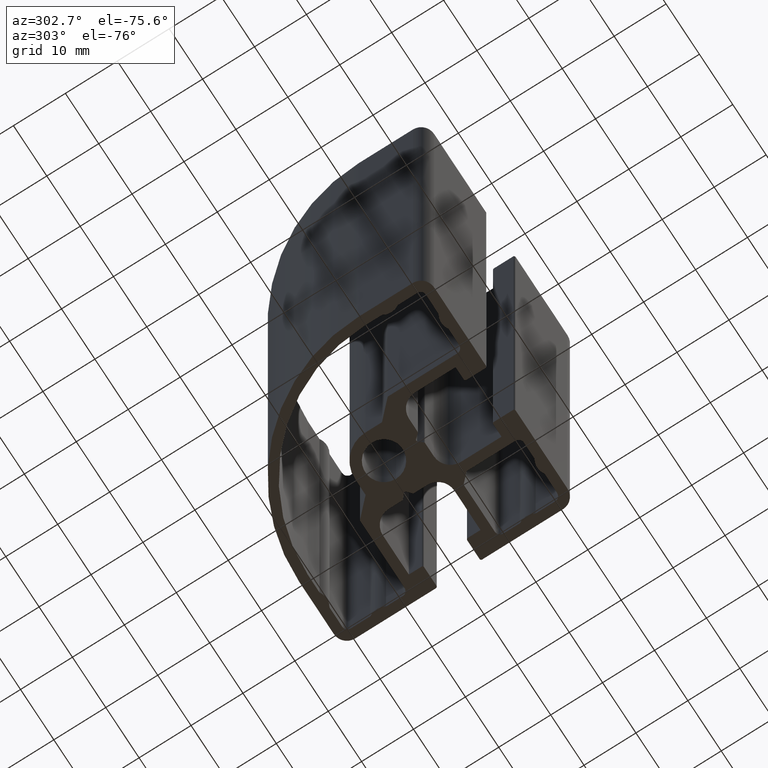
[diagram: clean part render]
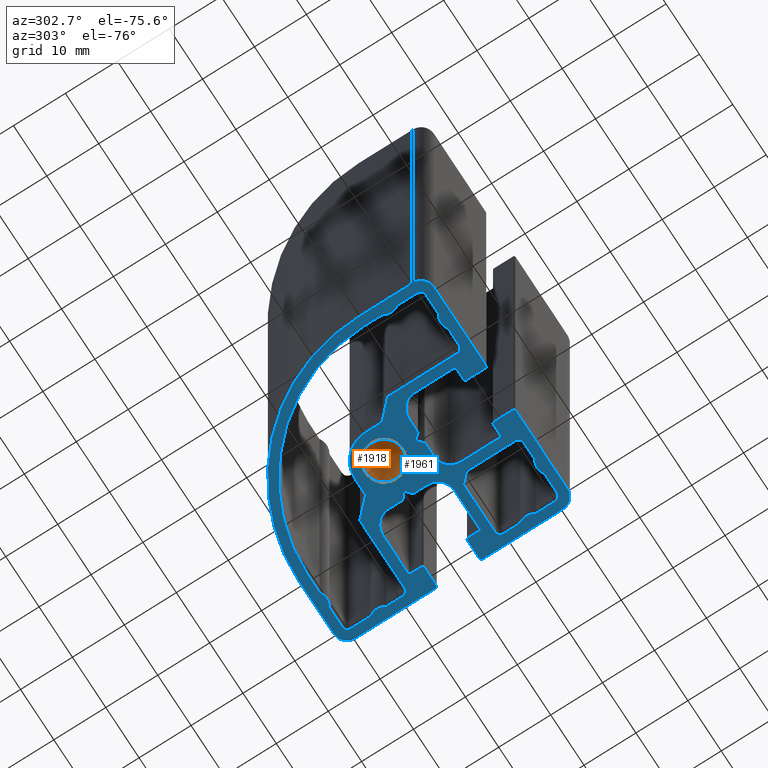
[diagram: same view with the hole feature highlighted: cylindrical wall and planar end face, labeled with their STEP entity ids]
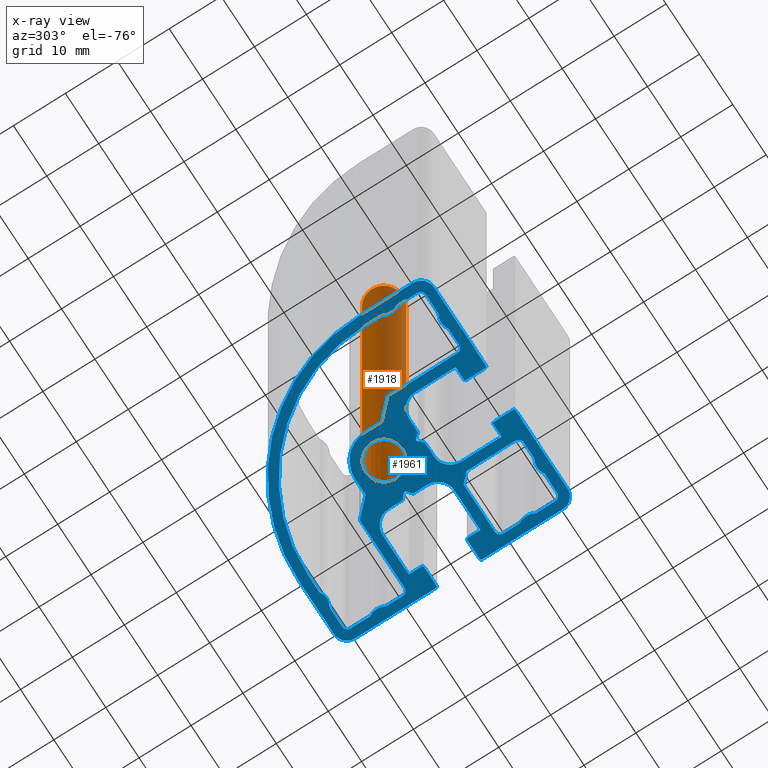
[diagram: x-ray of the same camera — body ghosted, the hole faces saturated]
A machine part, auxiliary view. The highlighted faces form one hole feature of diameter 7.2 mm: the cylindrical wall (entity #1918, orange) and its adjacent planar end face (entity #1961, blue) — they share a circular edge in the B-rep.
The next image is the same camera in x-ray (body ghosted, the hole faces saturated) — the bore reads through the body.
Wall:
#15=FACE_BOUND('',#219,.T.);
#119=FACE_OUTER_BOUND('',#218,.T.);
#218=EDGE_LOOP('',(#1432));
#219=EDGE_LOOP('',(#1433));
#710=CIRCLE('',#2074,3.6);
#711=CIRCLE('',#2075,3.6);
#852=VERTEX_POINT('',#3050);
#853=VERTEX_POINT('',#3052);
#1094=EDGE_CURVE('',#852,#852,#710,.T.);
#1095=EDGE_CURVE('',#853,#853,#711,.T.);
#1432=ORIENTED_EDGE('',*,*,#1094,.F.);
#1433=ORIENTED_EDGE('',*,*,#1095,.F.);
#1847=CYLINDRICAL_SURFACE('',#2073,3.6);
#1918=ADVANCED_FACE('',(#119,#15),#1847,.F.);
#2073=AXIS2_PLACEMENT_3D('',#3049,#2466,#2467);
#2074=AXIS2_PLACEMENT_3D('',#3051,#2468,#2469);
#2075=AXIS2_PLACEMENT_3D('',#3053,#2470,#2471);
#2466=DIRECTION('center_axis',(0.,0.,1.));
#2467=DIRECTION('ref_axis',(-1.,0.,0.));
#2468=DIRECTION('center_axis',(0.,0.,-1.));
#2469=DIRECTION('ref_axis',(-1.,0.,0.));
#2470=DIRECTION('center_axis',(0.,0.,1.));
#2471=DIRECTION('ref_axis',(-1.,0.,0.));
#3049=CARTESIAN_POINT('Origin',(0.,0.,0.));
#3050=CARTESIAN_POINT('',(3.6,-4.40872847693047E-16,100.));
#3051=CARTESIAN_POINT('Origin',(0.,0.,100.));
#3052=CARTESIAN_POINT('',(3.6,4.40872847693047E-16,0.));
#3053=CARTESIAN_POINT('Origin',(0.,0.,0.));
End face:
#16=FACE_BOUND('',#263,.T.);
#17=FACE_BOUND('',#264,.T.);
#18=FACE_BOUND('',#265,.T.);
#66=PLANE('',#2156);
#162=FACE_OUTER_BOUND('',#262,.T.);
#262=EDGE_LOOP('',(#1602,#1603,#1604,#1605,#1606,#1607,#1608,#1609,#1610,
#1611,#1612,#1613,#1614,#1615,#1616,#1617,#1618,#1619,#1620,#1621,#1622,
#1623,#1624,#1625,#1626,#1627,#1628,#1629,#1630,#1631,#1632,#1633,#1634,
#1635,#1636,#1637,#1638,#1639,#1640,#1641,#1642,#1643,#1644,#1645,#1646,
#1647,#1648,#1649));
#263=EDGE_LOOP('',(#1650));
#264=EDGE_LOOP('',(#1651,#1652,#1653,#1654,#1655,#1656,#1657,#1658,#1659,
#1660,#1661,#1662,#1663,#1664,#1665,#1666,#1667,#1668,#1669,#1670,#1671,
#1672,#1673,#1674,#1675,#1676,#1677,#1678,#1679,#1680,#1681,#1682));
#265=EDGE_LOOP('',(#1683,#1684,#1685,#1686,#1687,#1688,#1689,#1690,#1691,
#1692,#1693,#1694,#1695,#1696,#1697,#1698));
#279=LINE('',#2774,#469);
#283=LINE('',#2786,#473);
#289=LINE('',#2810,#479);
#293=LINE('',#2822,#483);
#296=LINE('',#2828,#486);
#299=LINE('',#2834,#489);
#303=LINE('',#2846,#493);
#310=LINE('',#2871,#500);
#316=LINE('',#2895,#506);
#320=LINE('',#2907,#510);
#326=LINE('',#2931,#516);
#330=LINE('',#2943,#520);
#333=LINE('',#2949,#523);
#336=LINE('',#2955,#526);
#340=LINE('',#2967,#530);
#343=LINE('',#2973,#533);
#346=LINE('',#2979,#536);
#350=LINE('',#2991,#540);
#356=LINE('',#3015,#546);
#360=LINE('',#3027,#550);
#365=LINE('',#3048,#555);
#370=LINE('',#3068,#560);
#374=LINE('',#3080,#564);
#378=LINE('',#3092,#568);
#381=LINE('',#3098,#571);
#385=LINE('',#3110,#575);
#391=LINE('',#3131,#581);
#395=LINE('',#3143,#585);
#398=LINE('',#3149,#588);
#402=LINE('',#3161,#592);
#405=LINE('',#3170,#595);
#408=LINE('',#3178,#598);
#412=LINE('',#3190,#602);
#416=LINE('',#3202,#606);
#419=LINE('',#3208,#609);
#423=LINE('',#3220,#613);
#429=LINE('',#3241,#619);
#433=LINE('',#3253,#623);
#436=LINE('',#3259,#626);
#440=LINE('',#3271,#630);
#444=LINE('',#3283,#634);
#450=LINE('',#3302,#640);
#451=LINE('',#3305,#641);
#454=LINE('',#3311,#644);
#457=LINE('',#3318,#647);
#458=LINE('',#3321,#648);
#459=LINE('',#3324,#649);
#469=VECTOR('',#2183,3.7282175723307);
#473=VECTOR('',#2195,3.7282175723338);
#479=VECTOR('',#2221,3.12821757233066);
#483=VECTOR('',#2233,9.37365400000133);
#486=VECTOR('',#2238,2.30000057030746);
#489=VECTOR('',#2243,9.37365400000362);
#493=VECTOR('',#2255,3.12821757232699);
#500=VECTOR('',#2282,3.32821757234062);
#506=VECTOR('',#2308,3.72821757233071);
#510=VECTOR('',#2320,3.72821757233365);
#516=VECTOR('',#2346,3.12821757233066);
#520=VECTOR('',#2358,13.3999999999897);
#523=VECTOR('',#2363,4.38406204337119);
#526=VECTOR('',#2368,3.2);
#530=VECTOR('',#2380,3.2);
#533=VECTOR('',#2385,4.38406204337121);
#536=VECTOR('',#2390,13.3999999999912);
#540=VECTOR('',#2402,3.1282175723185);
#546=VECTOR('',#2428,3.72821757233143);
#550=VECTOR('',#2440,3.72821757232995);
#555=VECTOR('',#2465,3.32821757233886);
#560=VECTOR('',#2484,1.04228513006779);
#564=VECTOR('',#2496,2.5633116785888);
#568=VECTOR('',#2508,7.80000000000001);
#571=VECTOR('',#2513,2.45);
#575=VECTOR('',#2525,3.7);
#581=VECTOR('',#2545,3.7);
#585=VECTOR('',#2557,2.45);
#588=VECTOR('',#2562,7.8);
#592=VECTOR('',#2574,2.56331167858849);
#595=VECTOR('',#2585,1.0422851300662);
#598=VECTOR('',#2590,1.0422851300662);
#602=VECTOR('',#2602,2.56331167858849);
#606=VECTOR('',#2614,7.8);
#609=VECTOR('',#2619,2.45);
#613=VECTOR('',#2631,3.7);
#619=VECTOR('',#2651,3.7);
#623=VECTOR('',#2663,2.45);
#626=VECTOR('',#2668,7.80000000000002);
#630=VECTOR('',#2680,2.5633116785888);
#634=VECTOR('',#2692,1.04228513006779);
#640=VECTOR('',#2712,15.55);
#641=VECTOR('',#2715,15.5500000000006);
#644=VECTOR('',#2720,10.5);
#647=VECTOR('',#2727,15.55);
#648=VECTOR('',#2730,10.5);
#649=VECTOR('',#2733,15.5500000000006);
#657=CIRCLE('',#1973,0.250000000000014);
#659=CIRCLE('',#1977,0.999999999996);
#661=CIRCLE('',#1981,0.250000000000007);
#663=CIRCLE('',#1984,2.7199999999891);
#665=CIRCLE('',#1987,0.249999999999989);
#667=CIRCLE('',#1991,0.999999999998);
#669=CIRCLE('',#1997,0.999999999998);
#671=CIRCLE('',#2001,0.25);
#673=CIRCLE('',#2004,2.71999999998912);
#675=CIRCLE('',#2007,30.2);
#677=CIRCLE('',#2011,0.250000000000014);
#679=CIRCLE('',#2014,2.71999999998911);
#681=CIRCLE('',#2017,0.249999999999986);
#683=CIRCLE('',#2021,0.999999999996);
#685=CIRCLE('',#2025,0.249999999999993);
#687=CIRCLE('',#2028,2.71999999998913);
#689=CIRCLE('',#2031,0.249999999999979);
#691=CIRCLE('',#2035,0.999999999998003);
#693=CIRCLE('',#2041,5.6);
#695=CIRCLE('',#2047,0.999999999998003);
#697=CIRCLE('',#2051,0.250000000000018);
#699=CIRCLE('',#2054,2.71999999998912);
#701=CIRCLE('',#2057,0.250000000000018);
#703=CIRCLE('',#2061,0.999999999996);
#705=CIRCLE('',#2065,0.250000000000004);
#707=CIRCLE('',#2068,2.71999999998912);
#709=CIRCLE('',#2071,0.250000000000004);
#711=CIRCLE('',#2075,3.6);
#713=CIRCLE('',#2078,0.300000000000003);
#715=CIRCLE('',#2082,0.300000000000004);
#717=CIRCLE('',#2086,3.19999999999359);
#719=CIRCLE('',#2091,0.2999999999994);
#721=CIRCLE('',#2095,0.2999999999994);
#723=CIRCLE('',#2098,0.299999999999407);
#725=CIRCLE('',#2102,0.2999999999994);
#727=CIRCLE('',#2107,3.1999999999936);
#729=CIRCLE('',#2111,0.299999999999997);
#731=CIRCLE('',#2116,0.299999999999997);
#733=CIRCLE('',#2120,3.1999999999936);
#735=CIRCLE('',#2125,0.2999999999994);
#737=CIRCLE('',#2129,0.299999999999407);
#739=CIRCLE('',#2132,0.2999999999994);
#741=CIRCLE('',#2136,0.2999999999994);
#743=CIRCLE('',#2141,3.19999999999359);
#745=CIRCLE('',#2145,0.300000000000004);
#747=CIRCLE('',#2149,0.300000000000003);
#749=CIRCLE('',#2152,32.);
#750=CIRCLE('',#2157,2.5);
#751=CIRCLE('',#2158,2.5);
#752=CIRCLE('',#2159,2.5);
#758=VERTEX_POINT('',#2765);
#759=VERTEX_POINT('',#2767);
#761=VERTEX_POINT('',#2773);
#763=VERTEX_POINT('',#2779);
#765=VERTEX_POINT('',#2785);
#767=VERTEX_POINT('',#2791);
#769=VERTEX_POINT('',#2797);
#771=VERTEX_POINT('',#2803);
#773=VERTEX_POINT('',#2809);
#775=VERTEX_POINT('',#2815);
#777=VERTEX_POINT('',#2821);
#779=VERTEX_POINT('',#2827);
#781=VERTEX_POINT('',#2833);
#783=VERTEX_POINT('',#2839);
#785=VERTEX_POINT('',#2845);
#787=VERTEX_POINT('',#2851);
#790=VERTEX_POINT('',#2861);
#791=VERTEX_POINT('',#2863);
#793=VERTEX_POINT('',#2869);
#795=VERTEX_POINT('',#2875);
#797=VERTEX_POINT('',#2881);
#799=VERTEX_POINT('',#2887);
#801=VERTEX_POINT('',#2893);
#803=VERTEX_POINT('',#2899);
#805=VERTEX_POINT('',#2905);
#807=VERTEX_POINT('',#2911);
#809=VERTEX_POINT('',#2917);
#811=VERTEX_POINT('',#2923);
#813=VERTEX_POINT('',#2929);
#815=VERTEX_POINT('',#2935);
#817=VERTEX_POINT('',#2941);
#819=VERTEX_POINT('',#2947);
#821=VERTEX_POINT('',#2953);
#823=VERTEX_POINT('',#2959);
#825=VERTEX_POINT('',#2965);
#827=VERTEX_POINT('',#2971);
#829=VERTEX_POINT('',#2977);
#831=VERTEX_POINT('',#2983);
#833=VERTEX_POINT('',#2989);
#835=VERTEX_POINT('',#2995);
#837=VERTEX_POINT('',#3001);
#839=VERTEX_POINT('',#3007);
#841=VERTEX_POINT('',#3013);
#843=VERTEX_POINT('',#3019);
#845=VERTEX_POINT('',#3025);
#847=VERTEX_POINT('',#3031);
#849=VERTEX_POINT('',#3037);
#851=VERTEX_POINT('',#3043);
#853=VERTEX_POINT('',#3052);
#856=VERTEX_POINT('',#3058);
#857=VERTEX_POINT('',#3060);
#859=VERTEX_POINT('',#3066);
#861=VERTEX_POINT('',#3072);
#863=VERTEX_POINT('',#3078);
#865=VERTEX_POINT('',#3084);
#867=VERTEX_POINT('',#3090);
#869=VERTEX_POINT('',#3096);
#871=VERTEX_POINT('',#3102);
#873=VERTEX_POINT('',#3108);
#875=VERTEX_POINT('',#3114);
#878=VERTEX_POINT('',#3121);
#879=VERTEX_POINT('',#3123);
#881=VERTEX_POINT('',#3129);
#883=VERTEX_POINT('',#3135);
#885=VERTEX_POINT('',#3141);
#887=VERTEX_POINT('',#3147);
#889=VERTEX_POINT('',#3153);
#891=VERTEX_POINT('',#3159);
#893=VERTEX_POINT('',#3165);
#896=VERTEX_POINT('',#3175);
#897=VERTEX_POINT('',#3177);
#899=VERTEX_POINT('',#3183);
#901=VERTEX_POINT('',#3189);
#903=VERTEX_POINT('',#3195);
#905=VERTEX_POINT('',#3201);
#907=VERTEX_POINT('',#3207);
#909=VERTEX_POINT('',#3213);
#911=VERTEX_POINT('',#3219);
#913=VERTEX_POINT('',#3225);
#916=VERTEX_POINT('',#3232);
#917=VERTEX_POINT('',#3234);
#919=VERTEX_POINT('',#3240);
#921=VERTEX_POINT('',#3246);
#923=VERTEX_POINT('',#3252);
#925=VERTEX_POINT('',#3258);
#927=VERTEX_POINT('',#3264);
#929=VERTEX_POINT('',#3270);
#931=VERTEX_POINT('',#3276);
#933=VERTEX_POINT('',#3282);
#936=VERTEX_POINT('',#3292);
#937=VERTEX_POINT('',#3294);
#939=VERTEX_POINT('',#3300);
#940=VERTEX_POINT('',#3304);
#942=VERTEX_POINT('',#3310);
#944=VERTEX_POINT('',#3317);
#945=VERTEX_POINT('',#3320);
#946=VERTEX_POINT('',#3322);
#952=EDGE_CURVE('',#759,#758,#657,.T.);
#955=EDGE_CURVE('',#761,#759,#279,.T.);
#958=EDGE_CURVE('',#763,#761,#659,.T.);
#961=EDGE_CURVE('',#765,#763,#283,.T.);
#964=EDGE_CURVE('',#767,#765,#661,.T.);
#967=EDGE_CURVE('',#769,#767,#663,.T.);
#970=EDGE_CURVE('',#771,#769,#665,.T.);
#973=EDGE_CURVE('',#773,#771,#289,.T.);
#976=EDGE_CURVE('',#775,#773,#667,.T.);
#979=EDGE_CURVE('',#777,#775,#293,.T.);
#982=EDGE_CURVE('',#779,#777,#296,.T.);
#985=EDGE_CURVE('',#781,#779,#299,.T.);
#988=EDGE_CURVE('',#783,#781,#669,.T.);
#991=EDGE_CURVE('',#785,#783,#303,.T.);
#994=EDGE_CURVE('',#787,#785,#671,.T.);
#997=EDGE_CURVE('',#758,#787,#673,.T.);
#1000=EDGE_CURVE('',#791,#790,#675,.T.);
#1004=EDGE_CURVE('',#790,#793,#310,.T.);
#1007=EDGE_CURVE('',#793,#795,#677,.T.);
#1010=EDGE_CURVE('',#795,#797,#679,.T.);
#1013=EDGE_CURVE('',#797,#799,#681,.T.);
#1016=EDGE_CURVE('',#799,#801,#316,.T.);
#1019=EDGE_CURVE('',#801,#803,#683,.T.);
#1022=EDGE_CURVE('',#803,#805,#320,.T.);
#1025=EDGE_CURVE('',#805,#807,#685,.T.);
#1028=EDGE_CURVE('',#807,#809,#687,.T.);
#1031=EDGE_CURVE('',#809,#811,#689,.T.);
#1034=EDGE_CURVE('',#811,#813,#326,.T.);
#1037=EDGE_CURVE('',#813,#815,#691,.T.);
#1040=EDGE_CURVE('',#815,#817,#330,.T.);
#1043=EDGE_CURVE('',#817,#819,#333,.T.);
#1046=EDGE_CURVE('',#819,#821,#336,.T.);
#1049=EDGE_CURVE('',#821,#823,#693,.T.);
#1052=EDGE_CURVE('',#823,#825,#340,.T.);
#1055=EDGE_CURVE('',#825,#827,#343,.T.);
#1058=EDGE_CURVE('',#827,#829,#346,.T.);
#1061=EDGE_CURVE('',#829,#831,#695,.T.);
#1064=EDGE_CURVE('',#831,#833,#350,.T.);
#1067=EDGE_CURVE('',#833,#835,#697,.T.);
#1070=EDGE_CURVE('',#835,#837,#699,.T.);
#1073=EDGE_CURVE('',#837,#839,#701,.T.);
#1076=EDGE_CURVE('',#839,#841,#356,.T.);
#1079=EDGE_CURVE('',#841,#843,#703,.T.);
#1082=EDGE_CURVE('',#843,#845,#360,.T.);
#1085=EDGE_CURVE('',#845,#847,#705,.T.);
#1088=EDGE_CURVE('',#847,#849,#707,.T.);
#1091=EDGE_CURVE('',#849,#851,#709,.T.);
#1093=EDGE_CURVE('',#851,#791,#365,.T.);
#1095=EDGE_CURVE('',#853,#853,#711,.T.);
#1098=EDGE_CURVE('',#857,#856,#713,.T.);
#1102=EDGE_CURVE('',#856,#859,#370,.T.);
#1105=EDGE_CURVE('',#859,#861,#715,.T.);
#1108=EDGE_CURVE('',#861,#863,#374,.T.);
#1111=EDGE_CURVE('',#863,#865,#717,.T.);
#1114=EDGE_CURVE('',#865,#867,#378,.T.);
#1117=EDGE_CURVE('',#867,#869,#381,.T.);
#1120=EDGE_CURVE('',#869,#871,#719,.T.);
#1123=EDGE_CURVE('',#871,#873,#385,.T.);
#1126=EDGE_CURVE('',#873,#875,#721,.T.);
#1129=EDGE_CURVE('',#879,#878,#723,.T.);
#1133=EDGE_CURVE('',#878,#881,#391,.T.);
#1136=EDGE_CURVE('',#881,#883,#725,.T.);
#1139=EDGE_CURVE('',#883,#885,#395,.T.);
#1142=EDGE_CURVE('',#885,#887,#398,.T.);
#1145=EDGE_CURVE('',#887,#889,#727,.T.);
#1148=EDGE_CURVE('',#889,#891,#402,.T.);
#1151=EDGE_CURVE('',#891,#893,#729,.T.);
#1153=EDGE_CURVE('',#893,#857,#405,.T.);
#1156=EDGE_CURVE('',#897,#896,#408,.T.);
#1159=EDGE_CURVE('',#899,#897,#731,.T.);
#1162=EDGE_CURVE('',#901,#899,#412,.T.);
#1165=EDGE_CURVE('',#903,#901,#733,.T.);
#1168=EDGE_CURVE('',#905,#903,#416,.T.);
#1171=EDGE_CURVE('',#907,#905,#419,.T.);
#1174=EDGE_CURVE('',#909,#907,#735,.T.);
#1177=EDGE_CURVE('',#911,#909,#423,.T.);
#1180=EDGE_CURVE('',#913,#911,#737,.T.);
#1184=EDGE_CURVE('',#917,#916,#739,.T.);
#1187=EDGE_CURVE('',#919,#917,#429,.T.);
#1190=EDGE_CURVE('',#921,#919,#741,.T.);
#1193=EDGE_CURVE('',#923,#921,#433,.T.);
#1196=EDGE_CURVE('',#925,#923,#436,.T.);
#1199=EDGE_CURVE('',#927,#925,#743,.T.);
#1202=EDGE_CURVE('',#929,#927,#440,.T.);
#1205=EDGE_CURVE('',#931,#929,#745,.T.);
#1208=EDGE_CURVE('',#933,#931,#444,.T.);
#1211=EDGE_CURVE('',#896,#933,#747,.T.);
#1214=EDGE_CURVE('',#937,#936,#749,.T.);
#1218=EDGE_CURVE('',#875,#939,#450,.T.);
#1219=EDGE_CURVE('',#940,#913,#451,.T.);
#1222=EDGE_CURVE('',#942,#937,#454,.T.);
#1225=EDGE_CURVE('',#939,#940,#750,.T.);
#1226=EDGE_CURVE('',#916,#944,#457,.T.);
#1227=EDGE_CURVE('',#944,#942,#751,.T.);
#1228=EDGE_CURVE('',#936,#945,#458,.T.);
#1229=EDGE_CURVE('',#945,#946,#752,.T.);
#1230=EDGE_CURVE('',#946,#879,#459,.T.);
#1602=ORIENTED_EDGE('',*,*,#1129,.T.);
#1603=ORIENTED_EDGE('',*,*,#1133,.T.);
#1604=ORIENTED_EDGE('',*,*,#1136,.T.);
#1605=ORIENTED_EDGE('',*,*,#1139,.T.);
#1606=ORIENTED_EDGE('',*,*,#1142,.T.);
#1607=ORIENTED_EDGE('',*,*,#1145,.T.);
#1608=ORIENTED_EDGE('',*,*,#1148,.T.);
#1609=ORIENTED_EDGE('',*,*,#1151,.T.);
#1610=ORIENTED_EDGE('',*,*,#1153,.T.);
#1611=ORIENTED_EDGE('',*,*,#1098,.T.);
#1612=ORIENTED_EDGE('',*,*,#1102,.T.);
#1613=ORIENTED_EDGE('',*,*,#1105,.T.);
#1614=ORIENTED_EDGE('',*,*,#1108,.T.);
#1615=ORIENTED_EDGE('',*,*,#1111,.T.);
#1616=ORIENTED_EDGE('',*,*,#1114,.T.);
#1617=ORIENTED_EDGE('',*,*,#1117,.T.);
#1618=ORIENTED_EDGE('',*,*,#1120,.T.);
#1619=ORIENTED_EDGE('',*,*,#1123,.T.);
#1620=ORIENTED_EDGE('',*,*,#1126,.T.);
#1621=ORIENTED_EDGE('',*,*,#1218,.T.);
#1622=ORIENTED_EDGE('',*,*,#1225,.T.);
#1623=ORIENTED_EDGE('',*,*,#1219,.T.);
#1624=ORIENTED_EDGE('',*,*,#1180,.T.);
#1625=ORIENTED_EDGE('',*,*,#1177,.T.);
#1626=ORIENTED_EDGE('',*,*,#1174,.T.);
#1627=ORIENTED_EDGE('',*,*,#1171,.T.);
#1628=ORIENTED_EDGE('',*,*,#1168,.T.);
#1629=ORIENTED_EDGE('',*,*,#1165,.T.);
#1630=ORIENTED_EDGE('',*,*,#1162,.T.);
#1631=ORIENTED_EDGE('',*,*,#1159,.T.);
#1632=ORIENTED_EDGE('',*,*,#1156,.T.);
#1633=ORIENTED_EDGE('',*,*,#1211,.T.);
#1634=ORIENTED_EDGE('',*,*,#1208,.T.);
#1635=ORIENTED_EDGE('',*,*,#1205,.T.);
#1636=ORIENTED_EDGE('',*,*,#1202,.T.);
#1637=ORIENTED_EDGE('',*,*,#1199,.T.);
#1638=ORIENTED_EDGE('',*,*,#1196,.T.);
#1639=ORIENTED_EDGE('',*,*,#1193,.T.);
#1640=ORIENTED_EDGE('',*,*,#1190,.T.);
#1641=ORIENTED_EDGE('',*,*,#1187,.T.);
#1642=ORIENTED_EDGE('',*,*,#1184,.T.);
#1643=ORIENTED_EDGE('',*,*,#1226,.T.);
#1644=ORIENTED_EDGE('',*,*,#1227,.T.);
#1645=ORIENTED_EDGE('',*,*,#1222,.T.);
#1646=ORIENTED_EDGE('',*,*,#1214,.T.);
#1647=ORIENTED_EDGE('',*,*,#1228,.T.);
#1648=ORIENTED_EDGE('',*,*,#1229,.T.);
#1649=ORIENTED_EDGE('',*,*,#1230,.T.);
#1650=ORIENTED_EDGE('',*,*,#1095,.T.);
#1651=ORIENTED_EDGE('',*,*,#1000,.T.);
#1652=ORIENTED_EDGE('',*,*,#1004,.T.);
#1653=ORIENTED_EDGE('',*,*,#1007,.T.);
#1654=ORIENTED_EDGE('',*,*,#1010,.T.);
#1655=ORIENTED_EDGE('',*,*,#1013,.T.);
#1656=ORIENTED_EDGE('',*,*,#1016,.T.);
#1657=ORIENTED_EDGE('',*,*,#1019,.T.);
#1658=ORIENTED_EDGE('',*,*,#1022,.T.);
#1659=ORIENTED_EDGE('',*,*,#1025,.T.);
#1660=ORIENTED_EDGE('',*,*,#1028,.T.);
#1661=ORIENTED_EDGE('',*,*,#1031,.T.);
#1662=ORIENTED_EDGE('',*,*,#1034,.T.);
#1663=ORIENTED_EDGE('',*,*,#1037,.T.);
#1664=ORIENTED_EDGE('',*,*,#1040,.T.);
#1665=ORIENTED_EDGE('',*,*,#1043,.T.);
#1666=ORIENTED_EDGE('',*,*,#1046,.T.);
#1667=ORIENTED_EDGE('',*,*,#1049,.T.);
#1668=ORIENTED_EDGE('',*,*,#1052,.T.);
#1669=ORIENTED_EDGE('',*,*,#1055,.T.);
#1670=ORIENTED_EDGE('',*,*,#1058,.T.);
#1671=ORIENTED_EDGE('',*,*,#1061,.T.);
#1672=ORIENTED_EDGE('',*,*,#1064,.T.);
#1673=ORIENTED_EDGE('',*,*,#1067,.T.);
#1674=ORIENTED_EDGE('',*,*,#1070,.T.);
#1675=ORIENTED_EDGE('',*,*,#1073,.T.);
#1676=ORIENTED_EDGE('',*,*,#1076,.T.);
#1677=ORIENTED_EDGE('',*,*,#1079,.T.);
#1678=ORIENTED_EDGE('',*,*,#1082,.T.);
#1679=ORIENTED_EDGE('',*,*,#1085,.T.);
#1680=ORIENTED_EDGE('',*,*,#1088,.T.);
#1681=ORIENTED_EDGE('',*,*,#1091,.T.);
#1682=ORIENTED_EDGE('',*,*,#1093,.T.);
#1683=ORIENTED_EDGE('',*,*,#952,.T.);
#1684=ORIENTED_EDGE('',*,*,#997,.T.);
#1685=ORIENTED_EDGE('',*,*,#994,.T.);
#1686=ORIENTED_EDGE('',*,*,#991,.T.);
#1687=ORIENTED_EDGE('',*,*,#988,.T.);
#1688=ORIENTED_EDGE('',*,*,#985,.T.);
#1689=ORIENTED_EDGE('',*,*,#982,.T.);
#1690=ORIENTED_EDGE('',*,*,#979,.T.);
#1691=ORIENTED_EDGE('',*,*,#976,.T.);
#1692=ORIENTED_EDGE('',*,*,#973,.T.);
#1693=ORIENTED_EDGE('',*,*,#970,.T.);
#1694=ORIENTED_EDGE('',*,*,#967,.T.);
#1695=ORIENTED_EDGE('',*,*,#964,.T.);
#1696=ORIENTED_EDGE('',*,*,#961,.T.);
#1697=ORIENTED_EDGE('',*,*,#958,.T.);
#1698=ORIENTED_EDGE('',*,*,#955,.T.);
#1961=ADVANCED_FACE('',(#162,#16,#17,#18),#66,.F.);
#1973=AXIS2_PLACEMENT_3D('',#2768,#2177,#2178);
#1977=AXIS2_PLACEMENT_3D('',#2780,#2189,#2190);
#1981=AXIS2_PLACEMENT_3D('',#2792,#2201,#2202);
#1984=AXIS2_PLACEMENT_3D('',#2798,#2208,#2209);
#1987=AXIS2_PLACEMENT_3D('',#2804,#2215,#2216);
#1991=AXIS2_PLACEMENT_3D('',#2816,#2227,#2228);
#1997=AXIS2_PLACEMENT_3D('',#2840,#2249,#2250);
#2001=AXIS2_PLACEMENT_3D('',#2852,#2261,#2262);
#2004=AXIS2_PLACEMENT_3D('',#2856,#2268,#2269);
#2007=AXIS2_PLACEMENT_3D('',#2864,#2275,#2276);
#2011=AXIS2_PLACEMENT_3D('',#2877,#2288,#2289);
#2014=AXIS2_PLACEMENT_3D('',#2883,#2295,#2296);
#2017=AXIS2_PLACEMENT_3D('',#2889,#2302,#2303);
#2021=AXIS2_PLACEMENT_3D('',#2901,#2314,#2315);
#2025=AXIS2_PLACEMENT_3D('',#2913,#2326,#2327);
#2028=AXIS2_PLACEMENT_3D('',#2919,#2333,#2334);
#2031=AXIS2_PLACEMENT_3D('',#2925,#2340,#2341);
#2035=AXIS2_PLACEMENT_3D('',#2937,#2352,#2353);
#2041=AXIS2_PLACEMENT_3D('',#2961,#2374,#2375);
#2047=AXIS2_PLACEMENT_3D('',#2985,#2396,#2397);
#2051=AXIS2_PLACEMENT_3D('',#2997,#2408,#2409);
#2054=AXIS2_PLACEMENT_3D('',#3003,#2415,#2416);
#2057=AXIS2_PLACEMENT_3D('',#3009,#2422,#2423);
#2061=AXIS2_PLACEMENT_3D('',#3021,#2434,#2435);
#2065=AXIS2_PLACEMENT_3D('',#3033,#2446,#2447);
#2068=AXIS2_PLACEMENT_3D('',#3039,#2453,#2454);
#2071=AXIS2_PLACEMENT_3D('',#3045,#2460,#2461);
#2075=AXIS2_PLACEMENT_3D('',#3053,#2470,#2471);
#2078=AXIS2_PLACEMENT_3D('',#3061,#2477,#2478);
#2082=AXIS2_PLACEMENT_3D('',#3074,#2490,#2491);
#2086=AXIS2_PLACEMENT_3D('',#3086,#2502,#2503);
#2091=AXIS2_PLACEMENT_3D('',#3104,#2519,#2520);
#2095=AXIS2_PLACEMENT_3D('',#3116,#2531,#2532);
#2098=AXIS2_PLACEMENT_3D('',#3124,#2538,#2539);
#2102=AXIS2_PLACEMENT_3D('',#3137,#2551,#2552);
#2107=AXIS2_PLACEMENT_3D('',#3155,#2568,#2569);
#2111=AXIS2_PLACEMENT_3D('',#3167,#2580,#2581);
#2116=AXIS2_PLACEMENT_3D('',#3184,#2596,#2597);
#2120=AXIS2_PLACEMENT_3D('',#3196,#2608,#2609);
#2125=AXIS2_PLACEMENT_3D('',#3214,#2625,#2626);
#2129=AXIS2_PLACEMENT_3D('',#3226,#2637,#2638);
#2132=AXIS2_PLACEMENT_3D('',#3235,#2645,#2646);
#2136=AXIS2_PLACEMENT_3D('',#3247,#2657,#2658);
#2141=AXIS2_PLACEMENT_3D('',#3265,#2674,#2675);
#2145=AXIS2_PLACEMENT_3D('',#3277,#2686,#2687);
#2149=AXIS2_PLACEMENT_3D('',#3287,#2698,#2699);
#2152=AXIS2_PLACEMENT_3D('',#3295,#2705,#2706);
#2156=AXIS2_PLACEMENT_3D('',#3315,#2723,#2724);
#2157=AXIS2_PLACEMENT_3D('',#3316,#2725,#2726);
#2158=AXIS2_PLACEMENT_3D('',#3319,#2728,#2729);
#2159=AXIS2_PLACEMENT_3D('',#3323,#2731,#2732);
#2177=DIRECTION('center_axis',(0.,0.,1.));
#2178=DIRECTION('ref_axis',(-1.,-2.7533531010702E-13,0.));
#2183=DIRECTION('',(-2.68010303255448E-13,1.,0.));
#2189=DIRECTION('center_axis',(0.,0.,1.));
#2190=DIRECTION('ref_axis',(-1.07247544179219E-12,1.,0.));
#2195=DIRECTION('',(1.,9.85086759075873E-13,0.));
#2201=DIRECTION('center_axis',(0.,0.,1.));
#2202=DIRECTION('ref_axis',(0.529219672618411,0.848484848487975,0.));
#2208=DIRECTION('center_axis',(0.,0.,-1.));
#2209=DIRECTION('ref_axis',(0.529219672618442,0.848484848487955,0.));
#2215=DIRECTION('center_axis',(0.,0.,1.));
#2216=DIRECTION('ref_axis',(-2.57571741713051E-13,1.,0.));
#2221=DIRECTION('',(1.,3.17995729856795E-13,0.));
#2227=DIRECTION('center_axis',(0.,0.,1.));
#2228=DIRECTION('ref_axis',(1.,-2.00062189037854E-12,0.));
#2233=DIRECTION('',(2.84257906159113E-13,-1.,0.));
#2238=DIRECTION('',(-0.707106781186546,-0.707106781186548,0.));
#2243=DIRECTION('',(-1.,2.84021024570578E-13,0.));
#2249=DIRECTION('center_axis',(0.,0.,1.));
#2250=DIRECTION('ref_axis',(-1.,0.,0.));
#2255=DIRECTION('',(0.,1.,0.));
#2261=DIRECTION('center_axis',(0.,0.,1.));
#2262=DIRECTION('ref_axis',(-0.848484848487945,0.529219672618459,0.));
#2268=DIRECTION('center_axis',(0.,0.,-1.));
#2269=DIRECTION('ref_axis',(-0.848484848487957,0.52921967261844,0.));
#2275=DIRECTION('center_axis',(0.,0.,1.));
#2276=DIRECTION('ref_axis',(3.92254293799683E-14,-1.,0.));
#2282=DIRECTION('',(-3.89620108835081E-13,-1.,0.));
#2288=DIRECTION('center_axis',(0.,0.,1.));
#2289=DIRECTION('ref_axis',(1.,-3.55271367880032E-14,0.));
#2295=DIRECTION('center_axis',(0.,0.,-1.));
#2296=DIRECTION('ref_axis',(0.848484848488291,-0.529219672617904,0.));
#2302=DIRECTION('center_axis',(0.,0.,1.));
#2303=DIRECTION('ref_axis',(0.848484848488319,-0.52921967261786,0.));
#2308=DIRECTION('',(-2.50142949705084E-13,-1.,0.));
#2314=DIRECTION('center_axis',(0.,0.,1.));
#2315=DIRECTION('ref_axis',(1.,-2.4868995751703E-13,0.));
#2320=DIRECTION('',(1.,-9.94616014302766E-13,0.));
#2326=DIRECTION('center_axis',(0.,0.,1.));
#2327=DIRECTION('ref_axis',(1.07469588783717E-12,1.,0.));
#2333=DIRECTION('center_axis',(0.,0.,-1.));
#2334=DIRECTION('ref_axis',(0.529219672617903,0.848484848488292,0.));
#2340=DIRECTION('center_axis',(0.,0.,1.));
#2341=DIRECTION('ref_axis',(0.52921967261789,0.8484848484883,0.));
#2346=DIRECTION('',(1.,-3.19415353650799E-13,0.));
#2352=DIRECTION('center_axis',(0.,0.,1.));
#2353=DIRECTION('ref_axis',(-1.99729122130465E-12,1.,0.));
#2358=DIRECTION('',(2.74904477291724E-13,1.,0.));
#2363=DIRECTION('',(0.707106781186548,0.707106781186547,0.));
#2368=DIRECTION('',(0.,1.,0.));
#2374=DIRECTION('center_axis',(0.,0.,-1.));
#2375=DIRECTION('ref_axis',(1.17145536458252E-15,1.,0.));
#2380=DIRECTION('',(1.,0.,0.));
#2385=DIRECTION('',(0.707106781186548,0.707106781186548,0.));
#2390=DIRECTION('',(1.,2.74738772362644E-13,0.));
#2396=DIRECTION('center_axis',(0.,0.,1.));
#2397=DIRECTION('ref_axis',(-2.75335310107589E-13,1.,0.));
#2402=DIRECTION('',(-9.65344179926167E-14,1.,0.));
#2408=DIRECTION('center_axis',(0.,0.,1.));
#2409=DIRECTION('ref_axis',(-1.,-9.76996261670072E-14,0.));
#2415=DIRECTION('center_axis',(0.,0.,-1.));
#2416=DIRECTION('ref_axis',(-0.848484848488295,0.529219672617898,0.));
#2422=DIRECTION('center_axis',(0.,0.,1.));
#2423=DIRECTION('ref_axis',(-0.848484848488269,0.52921967261794,0.));
#2428=DIRECTION('',(-7.48046535308394E-13,1.,0.));
#2434=DIRECTION('center_axis',(0.,0.,1.));
#2435=DIRECTION('ref_axis',(-1.,-7.4606987255109E-13,0.));
#2440=DIRECTION('',(-1.,9.9580717120711E-13,0.));
#2446=DIRECTION('center_axis',(0.,0.,1.));
#2447=DIRECTION('ref_axis',(-1.02140518265513E-12,-1.,0.));
#2453=DIRECTION('center_axis',(0.,0.,-1.));
#2454=DIRECTION('ref_axis',(-0.529219672618439,-0.848484848487958,0.));
#2460=DIRECTION('center_axis',(0.,0.,1.));
#2461=DIRECTION('ref_axis',(-0.529219672618457,-0.848484848487946,0.));
#2465=DIRECTION('',(-1.,-3.73608323540686E-14,0.));
#2470=DIRECTION('center_axis',(0.,0.,1.));
#2471=DIRECTION('ref_axis',(-1.,0.,0.));
#2477=DIRECTION('center_axis',(0.,0.,1.));
#2478=DIRECTION('ref_axis',(-0.656178121090128,0.754606038541058,0.));
#2484=DIRECTION('',(0.754606038541064,-0.656178121090121,0.));
#2490=DIRECTION('center_axis',(0.,0.,-1.));
#2491=DIRECTION('ref_axis',(-1.,-4.99369064617849E-12,0.));
#2496=DIRECTION('',(4.99517957568512E-12,-1.,0.));
#2502=DIRECTION('center_axis',(0.,0.,1.));
#2503=DIRECTION('ref_axis',(-1.,2.00030964015286E-12,0.));
#2508=DIRECTION('',(1.,-1.42336285208353E-16,0.));
#2513=DIRECTION('',(4.87591826325171E-13,1.,0.));
#2519=DIRECTION('center_axis',(0.,0.,-1.));
#2520=DIRECTION('ref_axis',(1.99099995749843E-12,-1.,0.));
#2525=DIRECTION('',(1.,-3.22864857972072E-13,0.));
#2531=DIRECTION('center_axis',(0.,0.,-1.));
#2532=DIRECTION('ref_axis',(-1.,-1.9891495857907E-12,0.));
#2538=DIRECTION('center_axis',(0.,0.,-1.));
#2539=DIRECTION('ref_axis',(-2.96059473233961E-14,1.,0.));
#2545=DIRECTION('',(-1.,3.23765038802849E-13,0.));
#2551=DIRECTION('center_axis',(0.,0.,-1.));
#2552=DIRECTION('ref_axis',(1.,1.98914958579071E-12,0.));
#2557=DIRECTION('',(0.,1.,0.));
#2562=DIRECTION('',(-1.,-1.64099503216711E-12,0.));
#2568=DIRECTION('center_axis',(0.,0.,1.));
#2569=DIRECTION('ref_axis',(2.00187089128124E-12,1.,0.));
#2574=DIRECTION('',(-4.71235184110472E-13,-1.,0.));
#2580=DIRECTION('center_axis',(0.,0.,-1.));
#2581=DIRECTION('ref_axis',(-0.656178121090137,0.754606038541051,0.));
#2585=DIRECTION('',(-0.754606038541065,-0.65617812109012,0.));
#2590=DIRECTION('',(-0.65617812109012,0.754606038541065,0.));
#2596=DIRECTION('center_axis',(0.,0.,-1.));
#2597=DIRECTION('ref_axis',(0.754606038541051,0.656178121090137,0.));
#2602=DIRECTION('',(-1.,4.71235184110472E-13,0.));
#2608=DIRECTION('center_axis',(0.,0.,1.));
#2609=DIRECTION('ref_axis',(1.,-2.00187089128124E-12,0.));
#2614=DIRECTION('',(-1.64099503216711E-12,1.,0.));
#2619=DIRECTION('',(1.,0.,0.));
#2625=DIRECTION('center_axis',(0.,0.,-1.));
#2626=DIRECTION('ref_axis',(1.98914958579071E-12,-1.,0.));
#2631=DIRECTION('',(3.23615008664387E-13,1.,0.));
#2637=DIRECTION('center_axis',(0.,0.,-1.));
#2638=DIRECTION('ref_axis',(1.,2.96059473233961E-14,0.));
#2645=DIRECTION('center_axis',(0.,0.,-1.));
#2646=DIRECTION('ref_axis',(-1.9891495857907E-12,1.,0.));
#2651=DIRECTION('',(-3.22714827833609E-13,-1.,0.));
#2657=DIRECTION('center_axis',(0.,0.,-1.));
#2658=DIRECTION('ref_axis',(-1.,-1.99099995749842E-12,0.));
#2663=DIRECTION('',(1.,-4.87591826325172E-13,0.));
#2668=DIRECTION('',(0.,-1.,0.));
#2674=DIRECTION('center_axis',(0.,0.,1.));
#2675=DIRECTION('ref_axis',(2.00065658484806E-12,1.,0.));
#2680=DIRECTION('',(-1.,-4.99431333453786E-12,0.));
#2686=DIRECTION('center_axis',(0.,0.,-1.));
#2687=DIRECTION('ref_axis',(-4.99415323910542E-12,1.,0.));
#2692=DIRECTION('',(-0.656178121090122,-0.754606038541064,0.));
#2698=DIRECTION('center_axis',(0.,0.,1.));
#2699=DIRECTION('ref_axis',(0.754606038541058,0.656178121090128,0.));
#2705=DIRECTION('center_axis',(0.,0.,-1.));
#2706=DIRECTION('ref_axis',(-6.93889390390723E-17,-1.,0.));
#2712=DIRECTION('',(1.11022302462516E-16,-1.,0.));
#2715=DIRECTION('',(-1.,0.,0.));
#2720=DIRECTION('',(2.22044604925031E-16,1.,0.));
#2723=DIRECTION('center_axis',(0.,0.,1.));
#2724=DIRECTION('ref_axis',(1.,0.,0.));
#2725=DIRECTION('center_axis',(0.,0.,-1.));
#2726=DIRECTION('ref_axis',(-2.66453525910038E-15,-1.,0.));
#2727=DIRECTION('',(-1.,0.,0.));
#2728=DIRECTION('center_axis',(0.,0.,-1.));
#2729=DIRECTION('ref_axis',(-1.,0.,0.));
#2730=DIRECTION('',(1.,1.11022302462516E-16,0.));
#2731=DIRECTION('center_axis',(0.,0.,-1.));
#2732=DIRECTION('ref_axis',(1.,-3.55271367880051E-15,0.));
#2733=DIRECTION('',(1.11022302462516E-16,-1.,0.));
#2765=CARTESIAN_POINT('',(20.6621212121211,-15.8394775095149,0.));
#2767=CARTESIAN_POINT('',(20.699999999999,-15.9717824276693,0.));
#2768=CARTESIAN_POINT('Origin',(20.449999999999,-15.9717824276694,0.));
#2773=CARTESIAN_POINT('',(20.7,-19.7,0.));
#2774=CARTESIAN_POINT('',(20.6999999999974,-9.84999999999724,0.));
#2779=CARTESIAN_POINT('',(19.7000000000051,-20.6999999999963,0.));
#2780=CARTESIAN_POINT('Origin',(19.700000000004,-19.7000000000003,0.));
#2785=CARTESIAN_POINT('',(15.9717824276713,-20.7,0.));
#2786=CARTESIAN_POINT('',(7.98589121384583,-20.7000000000079,0.));
#2791=CARTESIAN_POINT('',(15.8394775095164,-20.662121212122,0.));
#2792=CARTESIAN_POINT('Origin',(15.971782427671,-20.45,0.));
#2797=CARTESIAN_POINT('',(12.9605224904851,-20.6621212121211,0.));
#2798=CARTESIAN_POINT('Origin',(14.4,-22.97,0.));
#2803=CARTESIAN_POINT('',(12.8282175723307,-20.699999999999,0.));
#2804=CARTESIAN_POINT('Origin',(12.8282175723306,-20.449999999999,0.));
#2809=CARTESIAN_POINT('',(9.7,-20.7,0.));
#2810=CARTESIAN_POINT('',(4.85000000000329,-20.7000000000015,0.));
#2815=CARTESIAN_POINT('',(8.700000000004,-19.7,0.));
#2816=CARTESIAN_POINT('Origin',(9.700000000002,-19.700000000002,0.));
#2821=CARTESIAN_POINT('',(8.70000000000134,-10.3263459999987,0.));
#2822=CARTESIAN_POINT('',(8.69999999999987,-5.1631729999981,0.));
#2827=CARTESIAN_POINT('',(10.3263459999987,-8.70000000000134,0.));
#2828=CARTESIAN_POINT('',(9.91975949999934,-9.10658650000066,0.));
#2833=CARTESIAN_POINT('',(19.7000000000023,-8.700000000004,0.));
#2834=CARTESIAN_POINT('',(9.8499999999999,-8.7000000000012,0.));
#2839=CARTESIAN_POINT('',(20.7,-9.700000000002,0.));
#2840=CARTESIAN_POINT('Origin',(19.700000000002,-9.700000000002,0.));
#2845=CARTESIAN_POINT('',(20.7,-12.828217572329,0.));
#2846=CARTESIAN_POINT('',(20.7,-6.41410878616449,0.));
#2851=CARTESIAN_POINT('',(20.662121212122,-12.9605224904836,0.));
#2852=CARTESIAN_POINT('Origin',(20.45,-12.828217572329,0.));
#2856=CARTESIAN_POINT('Origin',(22.97,-14.4,0.));
#2861=CARTESIAN_POINT('',(-20.7000000000087,-9.49999999998835,0.));
#2863=CARTESIAN_POINT('',(9.49999999999011,20.6999999999999,0.));
#2864=CARTESIAN_POINT('Origin',(9.4999999999913,-9.50000000000014,0.));
#2869=CARTESIAN_POINT('',(-20.70000000001,-12.828217572329,0.));
#2871=CARTESIAN_POINT('',(-20.7000000000069,-4.74999999999014,0.));
#2875=CARTESIAN_POINT('',(-20.662121212132,-12.9605224904836,0.));
#2877=CARTESIAN_POINT('Origin',(-20.45000000001,-12.828217572329,0.));
#2881=CARTESIAN_POINT('',(-20.6621212121311,-15.8394775095149,0.));
#2883=CARTESIAN_POINT('Origin',(-22.97000000001,-14.4,0.));
#2887=CARTESIAN_POINT('',(-20.700000000009,-15.9717824276693,0.));
#2889=CARTESIAN_POINT('Origin',(-20.450000000009,-15.9717824276694,0.));
#2893=CARTESIAN_POINT('',(-20.7000000000099,-19.7,0.));
#2895=CARTESIAN_POINT('',(-20.700000000007,-7.98589121383207,0.));
#2899=CARTESIAN_POINT('',(-19.7000000000149,-20.6999999999963,0.));
#2901=CARTESIAN_POINT('Origin',(-19.7000000000139,-19.7000000000003,0.));
#2905=CARTESIAN_POINT('',(-15.9717824276813,-20.7,0.));
#2907=CARTESIAN_POINT('',(-9.85000000001776,-20.7000000000061,0.));
#2911=CARTESIAN_POINT('',(-15.8394775095264,-20.662121212122,0.));
#2913=CARTESIAN_POINT('Origin',(-15.971782427681,-20.45,0.));
#2917=CARTESIAN_POINT('',(-12.9605224904951,-20.6621212121211,0.));
#2919=CARTESIAN_POINT('Origin',(-14.40000000001,-22.97,0.));
#2923=CARTESIAN_POINT('',(-12.8282175723407,-20.699999999999,0.));
#2925=CARTESIAN_POINT('Origin',(-12.8282175723406,-20.449999999999,0.));
#2929=CARTESIAN_POINT('',(-9.70000000001002,-20.7,0.));
#2931=CARTESIAN_POINT('',(-6.41410878617365,-20.7000000000011,0.));
#2935=CARTESIAN_POINT('',(-8.70000000001401,-19.7,0.));
#2937=CARTESIAN_POINT('Origin',(-9.70000000001201,-19.700000000002,0.));
#2941=CARTESIAN_POINT('',(-8.70000000001033,-6.30000000001031,0.));
#2943=CARTESIAN_POINT('',(-8.7000000000113,-9.8499999999988,0.));
#2947=CARTESIAN_POINT('',(-5.6,-3.19999999999999,0.));
#2949=CARTESIAN_POINT('',(-4.95000000000516,-2.55000000000515,0.));
#2953=CARTESIAN_POINT('',(-5.6,7.105427357601E-15,0.));
#2955=CARTESIAN_POINT('',(-5.6,-1.6,0.));
#2959=CARTESIAN_POINT('',(7.86990313611318E-16,5.6,0.));
#2961=CARTESIAN_POINT('Origin',(-5.77315972805081E-15,2.22044604925031E-15,
0.));
#2965=CARTESIAN_POINT('',(3.2,5.6,0.));
#2967=CARTESIAN_POINT('',(-1.94289029309402E-15,5.6,0.));
#2971=CARTESIAN_POINT('',(6.30000000001034,8.70000000001033,0.));
#2973=CARTESIAN_POINT('',(1.,3.4,0.));
#2977=CARTESIAN_POINT('',(19.7000000000016,8.70000000001402,0.));
#2979=CARTESIAN_POINT('',(3.15000000000397,8.70000000000947,0.));
#2983=CARTESIAN_POINT('',(20.6999999999993,9.70000000001212,0.));
#2985=CARTESIAN_POINT('Origin',(19.7000000000013,9.70000000001202,0.));
#2989=CARTESIAN_POINT('',(20.699999999999,12.8282175723306,0.));
#2991=CARTESIAN_POINT('',(20.6999999999998,4.85000000000706,0.));
#2995=CARTESIAN_POINT('',(20.6621212121211,12.9605224904851,0.));
#2997=CARTESIAN_POINT('Origin',(20.449999999999,12.8282175723306,0.));
#3001=CARTESIAN_POINT('',(20.6621212121211,15.8394775095149,0.));
#3003=CARTESIAN_POINT('Origin',(22.97,14.4,0.));
#3007=CARTESIAN_POINT('',(20.699999999999,15.9717824276696,0.));
#3009=CARTESIAN_POINT('Origin',(20.449999999999,15.9717824276694,0.));
#3013=CARTESIAN_POINT('',(20.6999999999962,19.700000000001,0.));
#3015=CARTESIAN_POINT('',(20.700000000005,7.98589121384255,0.));
#3019=CARTESIAN_POINT('',(19.7000000000012,20.6999999999963,0.));
#3021=CARTESIAN_POINT('Origin',(19.7000000000002,19.7000000000003,0.));
#3025=CARTESIAN_POINT('',(15.9717824276713,20.7,0.));
#3027=CARTESIAN_POINT('',(9.85000000001091,20.7000000000061,0.));
#3031=CARTESIAN_POINT('',(15.8394775095164,20.662121212122,0.));
#3033=CARTESIAN_POINT('Origin',(15.971782427671,20.45,0.));
#3037=CARTESIAN_POINT('',(12.9605224904836,20.662121212122,0.));
#3039=CARTESIAN_POINT('Origin',(14.4,22.97,0.));
#3043=CARTESIAN_POINT('',(12.828217572329,20.7,0.));
#3045=CARTESIAN_POINT('Origin',(12.828217572329,20.45,0.));
#3048=CARTESIAN_POINT('',(6.4141087861641,20.6999999999998,0.));
#3052=CARTESIAN_POINT('',(3.6,4.40872847693047E-16,0.));
#3053=CARTESIAN_POINT('Origin',(0.,0.,0.));
#3058=CARTESIAN_POINT('',(6.31033878329692,-0.226381811562323,0.));
#3060=CARTESIAN_POINT('',(6.31033878329692,0.226381811562316,0.));
#3061=CARTESIAN_POINT('Origin',(6.50719221962396,-3.71924713249427E-15,
0.));
#3066=CARTESIAN_POINT('',(7.09685343632763,-0.91030650985038,0.));
#3068=CARTESIAN_POINT('',(4.45764266094492,1.38465573442165,0.));
#3072=CARTESIAN_POINT('',(7.2000000000006,-1.1366883214112,0.));
#3074=CARTESIAN_POINT('Origin',(6.9000000000006,-1.1366883214127,0.));
#3078=CARTESIAN_POINT('',(7.2000000000134,-3.70000000000001,0.));
#3080=CARTESIAN_POINT('',(7.19999999999776,-0.568344160687618,0.));
#3084=CARTESIAN_POINT('',(10.4000000000006,-6.9,0.));
#3086=CARTESIAN_POINT('Origin',(10.400000000007,-3.70000000000641,0.));
#3090=CARTESIAN_POINT('',(18.2000000000006,-6.9,0.));
#3092=CARTESIAN_POINT('',(5.20000000000029,-6.9,0.));
#3096=CARTESIAN_POINT('',(18.2000000000018,-4.45000000000001,0.));
#3098=CARTESIAN_POINT('',(18.2000000000023,-3.45000000000444,0.));
#3102=CARTESIAN_POINT('',(18.5000000000006,-4.15000000000001,0.));
#3104=CARTESIAN_POINT('Origin',(18.5000000000012,-4.44999999999941,0.));
#3108=CARTESIAN_POINT('',(22.2000000000006,-4.1500000000012,0.));
#3110=CARTESIAN_POINT('',(9.24999999999963,-4.14999999999702,0.));
#3114=CARTESIAN_POINT('',(22.5000000000006,-4.45000000000001,0.));
#3116=CARTESIAN_POINT('Origin',(22.2000000000012,-4.45000000000061,0.));
#3121=CARTESIAN_POINT('',(22.2000000000006,4.14999999999999,0.));
#3123=CARTESIAN_POINT('',(22.5,4.44999999999939,0.));
#3124=CARTESIAN_POINT('Origin',(22.2000000000006,4.4499999999994,0.));
#3129=CARTESIAN_POINT('',(18.5000000000006,4.15000000000119,0.));
#3131=CARTESIAN_POINT('',(11.100000000001,4.15000000000359,0.));
#3135=CARTESIAN_POINT('',(18.2000000000006,4.44999999999999,0.));
#3137=CARTESIAN_POINT('Origin',(18.5,4.45000000000059,0.));
#3141=CARTESIAN_POINT('',(18.2000000000006,6.9,0.));
#3143=CARTESIAN_POINT('',(18.2000000000006,2.225,0.));
#3147=CARTESIAN_POINT('',(10.4000000000006,6.8999999999872,0.));
#3149=CARTESIAN_POINT('',(9.09999999999464,6.89999999998506,0.));
#3153=CARTESIAN_POINT('',(7.2000000000006,3.69999999999999,0.));
#3155=CARTESIAN_POINT('Origin',(10.3999999999942,3.6999999999936,0.));
#3159=CARTESIAN_POINT('',(7.19999999999939,1.1366883214115,0.));
#3161=CARTESIAN_POINT('',(7.19999999999973,1.8499999999983,0.));
#3165=CARTESIAN_POINT('',(7.09685343632643,0.910306509849327,0.));
#3167=CARTESIAN_POINT('Origin',(6.8999999999994,1.13668832141164,0.));
#3170=CARTESIAN_POINT('',(4.85089998745968,-1.04269338527815,0.));
#3175=CARTESIAN_POINT('',(0.226381811562316,-6.31033878329692,0.));
#3177=CARTESIAN_POINT('',(0.910306509849327,-7.09685343632643,0.));
#3178=CARTESIAN_POINT('',(-1.04269338527815,-4.85089998745968,0.));
#3183=CARTESIAN_POINT('',(1.13668832141151,-7.19999999999939,0.));
#3184=CARTESIAN_POINT('Origin',(1.13668832141164,-6.8999999999994,0.));
#3189=CARTESIAN_POINT('',(3.69999999999999,-7.2000000000006,0.));
#3190=CARTESIAN_POINT('',(1.8499999999983,-7.19999999999973,0.));
#3195=CARTESIAN_POINT('',(6.8999999999872,-10.4000000000006,0.));
#3196=CARTESIAN_POINT('Origin',(3.6999999999936,-10.3999999999942,0.));
#3201=CARTESIAN_POINT('',(6.9,-18.2000000000006,0.));
#3202=CARTESIAN_POINT('',(6.89999999998506,-9.09999999999464,0.));
#3207=CARTESIAN_POINT('',(4.45,-18.2000000000006,0.));
#3208=CARTESIAN_POINT('',(2.225,-18.2000000000006,0.));
#3213=CARTESIAN_POINT('',(4.15000000000119,-18.5000000000006,0.));
#3214=CARTESIAN_POINT('Origin',(4.45000000000059,-18.5,0.));
#3219=CARTESIAN_POINT('',(4.15,-22.2000000000006,0.));
#3220=CARTESIAN_POINT('',(4.15000000000359,-11.100000000001,0.));
#3225=CARTESIAN_POINT('',(4.4499999999994,-22.5,0.));
#3226=CARTESIAN_POINT('Origin',(4.4499999999994,-22.2000000000006,0.));
#3232=CARTESIAN_POINT('',(-4.45000000000001,-22.5000000000006,0.));
#3234=CARTESIAN_POINT('',(-4.1500000000012,-22.2000000000006,0.));
#3235=CARTESIAN_POINT('Origin',(-4.4500000000006,-22.2000000000012,0.));
#3240=CARTESIAN_POINT('',(-4.15000000000001,-18.5000000000006,0.));
#3241=CARTESIAN_POINT('',(-4.14999999999702,-9.24999999999963,0.));
#3246=CARTESIAN_POINT('',(-4.45000000000001,-18.2000000000018,0.));
#3247=CARTESIAN_POINT('Origin',(-4.44999999999941,-18.5000000000012,0.));
#3252=CARTESIAN_POINT('',(-6.9,-18.2000000000006,0.));
#3253=CARTESIAN_POINT('',(-3.45000000000444,-18.2000000000023,0.));
#3258=CARTESIAN_POINT('',(-6.9,-10.4000000000006,0.));
#3259=CARTESIAN_POINT('',(-6.9,-5.20000000000029,0.));
#3264=CARTESIAN_POINT('',(-3.70000000000001,-7.2000000000134,0.));
#3265=CARTESIAN_POINT('Origin',(-3.70000000000641,-10.400000000007,0.));
#3270=CARTESIAN_POINT('',(-1.1366883214112,-7.2000000000006,0.));
#3271=CARTESIAN_POINT('',(-0.568344160687624,-7.19999999999776,0.));
#3276=CARTESIAN_POINT('',(-0.910306509850379,-7.09685343632763,0.));
#3277=CARTESIAN_POINT('Origin',(-1.1366883214127,-6.9000000000006,0.));
#3282=CARTESIAN_POINT('',(-0.226381811562323,-6.31033878329692,0.));
#3283=CARTESIAN_POINT('',(1.38465573442165,-4.45764266094493,0.));
#3287=CARTESIAN_POINT('Origin',(-3.34454686168328E-15,-6.50719221962396,
0.));
#3292=CARTESIAN_POINT('',(9.50000000000001,22.5,0.));
#3294=CARTESIAN_POINT('',(-22.5,-9.5,0.));
#3295=CARTESIAN_POINT('Origin',(9.50000000000001,-9.5,0.));
#3300=CARTESIAN_POINT('',(22.5,-20.,0.));
#3302=CARTESIAN_POINT('',(22.5,-10.,0.));
#3304=CARTESIAN_POINT('',(20.,-22.5,0.));
#3305=CARTESIAN_POINT('',(-10.,-22.5,0.));
#3310=CARTESIAN_POINT('',(-22.5,-20.,0.));
#3311=CARTESIAN_POINT('',(-22.5,10.,0.));
#3315=CARTESIAN_POINT('Origin',(-4.44089209850063E-15,2.22044604925031E-15,
0.));
#3316=CARTESIAN_POINT('Origin',(20.,-20.,0.));
#3317=CARTESIAN_POINT('',(-20.,-22.5,0.));
#3318=CARTESIAN_POINT('',(-10.,-22.5,0.));
#3319=CARTESIAN_POINT('Origin',(-20.,-20.,0.));
#3320=CARTESIAN_POINT('',(20.,22.5,0.));
#3321=CARTESIAN_POINT('',(9.99999999999999,22.5,0.));
#3322=CARTESIAN_POINT('',(22.5,20.,0.));
#3323=CARTESIAN_POINT('Origin',(20.,20.,0.));
#3324=CARTESIAN_POINT('',(22.5,-10.,0.));